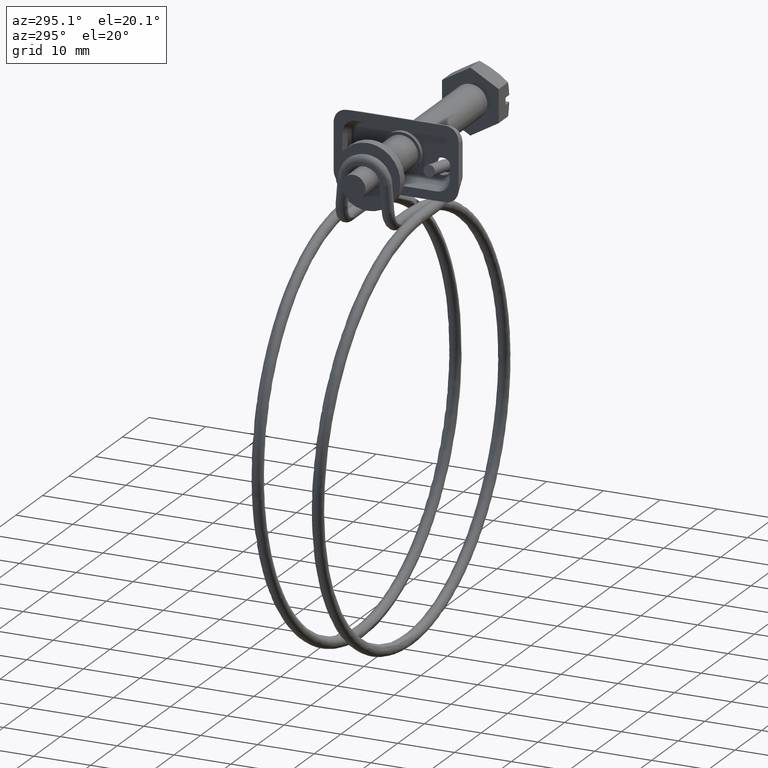
[diagram: clean part render]
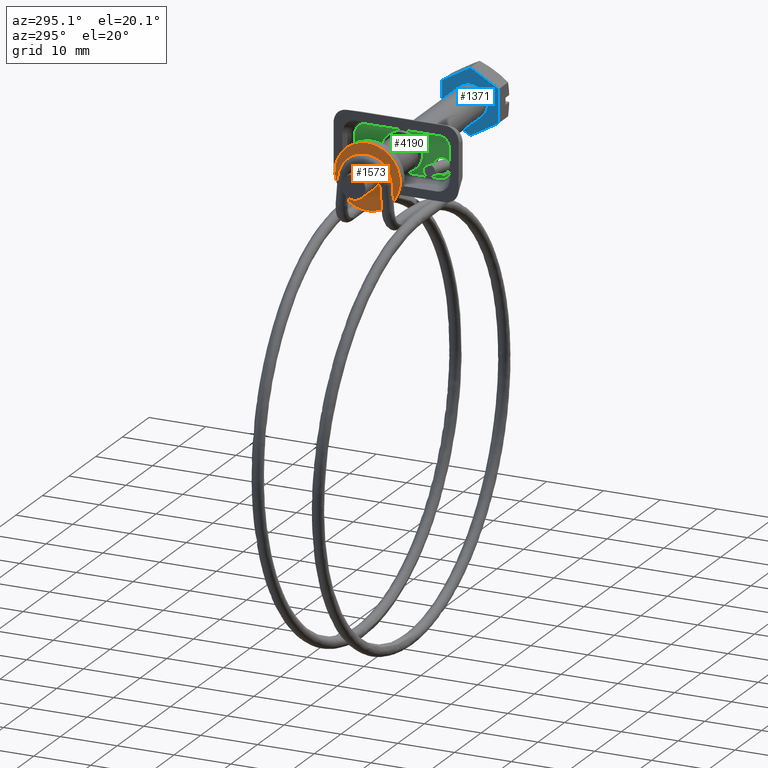
[diagram: same view with three faces highlighted in distinct colors, each labeled with its STEP entity id]
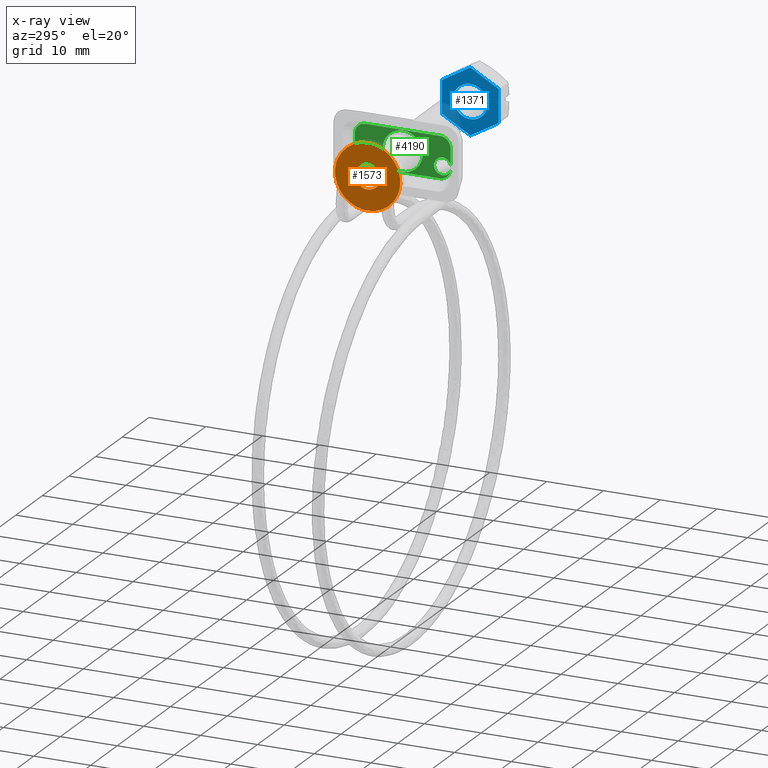
[diagram: x-ray of the same camera — body ghosted, the three highlighted faces saturated]
A machine part, auxiliary view with three faces highlighted in distinct colors.
The next image is the same camera in x-ray (body ghosted, the three faces saturated) — at least one of them is partly hidden behind the body in this view.
Their STEP definitions:

[orange] entity #1573 — the highlighted face is a freeform B-spline surface patch.
#286=CARTESIAN_POINT('',(-38.600000000000001,-5.739275090919949,-0.351029102420015));
#287=VERTEX_POINT('',#286);
#293=CARTESIAN_POINT('',(-38.600000000000001,0.0,-5.750000000000000));
#294=VERTEX_POINT('',#293);
#295=CARTESIAN_POINT('',(-38.600000000000001,0.0,-5.750000000000000));
#296=CARTESIAN_POINT('',(-38.600000000000009,-5.409059884529110,-5.749999999999999));
#297=CARTESIAN_POINT('',(-38.600000000000009,-5.739275090919949,-0.351029102420015));
#305=(BOUNDED_CURVE()B_SPLINE_CURVE(2,(#295,#296,#297),.UNSPECIFIED.,.F.,.U.)B_SPLINE_CURVE_WITH_KNOTS((3,3),(0.500000000000000,0.739332962236281),.UNSPECIFIED.)CURVE()GEOMETRIC_REPRESENTATION_ITEM()RATIONAL_B_SPLINE_CURVE((1.0,0.719603993289829,0.976072041661012))REPRESENTATION_ITEM(''));
#306=EDGE_CURVE('',#294,#287,#305,.T.);
#308=CARTESIAN_POINT('',(-38.599999999999987,5.709804776586705,0.678696849313175));
#309=VERTEX_POINT('',#308);
#310=CARTESIAN_POINT('',(-38.600000000000001,5.709804776586705,0.678696849313175));
#311=CARTESIAN_POINT('',(-38.600000000000001,5.750000000000000,0.340538688035686));
#312=CARTESIAN_POINT('',(-38.600000000000001,5.750000000000000,0.0));
#313=CARTESIAN_POINT('',(-38.600000000000009,5.750000000000000,-5.750000000000000));
#314=CARTESIAN_POINT('',(-38.600000000000001,0.0,-5.750000000000000));
#322=(BOUNDED_CURVE()B_SPLINE_CURVE(2,(#310,#311,#312,#313,#314),.UNSPECIFIED.,.F.,.U.)B_SPLINE_CURVE_WITH_KNOTS((3,2,3),(0.229562473513465,0.250000000000000,0.500000000000000),.UNSPECIFIED.)CURVE()GEOMETRIC_REPRESENTATION_ITEM()RATIONAL_B_SPLINE_CURVE((0.956026754183614,0.976055948331094,1.0,0.707106781186548,1.0))REPRESENTATION_ITEM(''));
#323=EDGE_CURVE('',#309,#294,#322,.T.);
#367=CARTESIAN_POINT('',(-38.600000000000001,0.0,5.750000000000000));
#368=VERTEX_POINT('',#367);
#369=CARTESIAN_POINT('',(-38.600000000000001,0.0,5.750000000000000));
#370=CARTESIAN_POINT('',(-38.600000000000001,5.107003524154044,5.750000000000001));
#371=CARTESIAN_POINT('',(-38.600000000000001,5.709804776586705,0.678696849313175));
#379=(BOUNDED_CURVE()B_SPLINE_CURVE(2,(#369,#370,#371),.UNSPECIFIED.,.F.,.U.)B_SPLINE_CURVE_WITH_KNOTS((3,3),(0.0,0.229562473513465),.UNSPECIFIED.)CURVE()GEOMETRIC_REPRESENTATION_ITEM()RATIONAL_B_SPLINE_CURVE((1.0,0.731050832855453,0.956026754183614))REPRESENTATION_ITEM(''));
#380=EDGE_CURVE('',#368,#309,#379,.T.);
#382=CARTESIAN_POINT('',(-38.599999999999994,-5.739275090919949,-0.351029102420015));
#383=CARTESIAN_POINT('',(-38.600000000000001,-5.750000000000000,-0.175678389061739));
#384=CARTESIAN_POINT('',(-38.600000000000001,-5.750000000000000,0.0));
#385=CARTESIAN_POINT('',(-38.600000000000009,-5.750000000000000,5.750000000000000));
#386=CARTESIAN_POINT('',(-38.600000000000001,0.0,5.750000000000000));
#394=(BOUNDED_CURVE()B_SPLINE_CURVE(2,(#382,#383,#384,#385,#386),.UNSPECIFIED.,.F.,.U.)B_SPLINE_CURVE_WITH_KNOTS((3,2,3),(0.739332962236281,0.750000000000000,1.0),.UNSPECIFIED.)CURVE()GEOMETRIC_REPRESENTATION_ITEM()RATIONAL_B_SPLINE_CURVE((0.976072041661012,0.987502787896719,1.0,0.707106781186548,1.0))REPRESENTATION_ITEM(''));
#395=EDGE_CURVE('',#287,#368,#394,.T.);
#438=CARTESIAN_POINT('',(-38.600000000000001,2.134970473869148,0.253773670238755));
#439=VERTEX_POINT('',#438);
#440=CARTESIAN_POINT('',(-38.600000000000001,0.0,-2.149999999999885));
#441=VERTEX_POINT('',#440);
#442=CARTESIAN_POINT('',(-38.600000000000001,2.134970473869148,0.253773670238755));
#443=CARTESIAN_POINT('',(-38.600000000000001,2.149999999999885,0.127331923673192));
#444=CARTESIAN_POINT('',(-38.600000000000001,2.149999999999885,0.0));
#445=CARTESIAN_POINT('',(-38.600000000000009,2.149999999999885,-2.149999999999885));
#446=CARTESIAN_POINT('',(-38.600000000000001,0.0,-2.149999999999885));
#454=(BOUNDED_CURVE()B_SPLINE_CURVE(2,(#442,#443,#444,#445,#446),.UNSPECIFIED.,.F.,.U.)B_SPLINE_CURVE_WITH_KNOTS((3,2,3),(0.229562463109850,0.250000000000000,0.500000000000000),.UNSPECIFIED.)CURVE()GEOMETRIC_REPRESENTATION_ITEM()RATIONAL_B_SPLINE_CURVE((0.956026733792103,0.976055936142501,1.0,0.707106781186548,1.0))REPRESENTATION_ITEM(''));
#455=EDGE_CURVE('',#439,#441,#454,.T.);
#457=CARTESIAN_POINT('',(-38.600000000000009,-2.145989816582436,-0.131254360399900));
#458=VERTEX_POINT('',#457);
#459=CARTESIAN_POINT('',(-38.600000000000001,0.0,-2.149999999999885));
#460=CARTESIAN_POINT('',(-38.600000000000016,-2.022518043091811,-2.149999999999884));
#461=CARTESIAN_POINT('',(-38.600000000000009,-2.145989816582437,-0.131254360399900));
#469=(BOUNDED_CURVE()B_SPLINE_CURVE(2,(#459,#460,#461),.UNSPECIFIED.,.F.,.U.)B_SPLINE_CURVE_WITH_KNOTS((3,3),(0.500000000000000,0.739332962177650),.UNSPECIFIED.)CURVE()GEOMETRIC_REPRESENTATION_ITEM()RATIONAL_B_SPLINE_CURVE((1.0,0.719603993358520,0.976072041535355))REPRESENTATION_ITEM(''));
#470=EDGE_CURVE('',#441,#458,#469,.T.);
#537=CARTESIAN_POINT('',(-38.600000000000001,0.0,2.149999999999885));
#538=VERTEX_POINT('',#537);
#539=CARTESIAN_POINT('',(-38.600000000000001,0.0,2.149999999999885));
#540=CARTESIAN_POINT('',(-38.599999999999994,1.909575112392111,2.149999999999884));
#541=CARTESIAN_POINT('',(-38.600000000000001,2.134970473869148,0.253773670238755));
#549=(BOUNDED_CURVE()B_SPLINE_CURVE(2,(#539,#540,#541),.UNSPECIFIED.,.F.,.U.)B_SPLINE_CURVE_WITH_KNOTS((3,3),(0.0,0.229562463109850),.UNSPECIFIED.)CURVE()GEOMETRIC_REPRESENTATION_ITEM()RATIONAL_B_SPLINE_CURVE((1.0,0.731050845044047,0.956026733792104))REPRESENTATION_ITEM(''));
#550=EDGE_CURVE('',#538,#439,#549,.T.);
#584=CARTESIAN_POINT('',(-38.600000000000009,-2.145989816582437,-0.131254360399900));
#585=CARTESIAN_POINT('',(-38.600000000000001,-2.149999999999885,-0.065688441493049));
#586=CARTESIAN_POINT('',(-38.600000000000001,-2.149999999999885,0.0));
#587=CARTESIAN_POINT('',(-38.600000000000009,-2.149999999999885,2.149999999999885));
#588=CARTESIAN_POINT('',(-38.600000000000001,0.0,2.149999999999885));
#596=(BOUNDED_CURVE()B_SPLINE_CURVE(2,(#584,#585,#586,#587,#588),.UNSPECIFIED.,.F.,.U.)B_SPLINE_CURVE_WITH_KNOTS((3,2,3),(0.739332962177651,0.750000000000000,1.0),.UNSPECIFIED.)CURVE()GEOMETRIC_REPRESENTATION_ITEM()RATIONAL_B_SPLINE_CURVE((0.976072041535357,0.987502787828029,1.0,0.707106781186548,1.0))REPRESENTATION_ITEM(''));
#597=EDGE_CURVE('',#458,#538,#596,.T.);
#1556=CARTESIAN_POINT('',(-38.600000000000001,-6.324285135775347,-6.324424977710769));
#1557=CARTESIAN_POINT('',(-38.600000000000001,-6.324285135775347,6.324425286164805));
#1558=CARTESIAN_POINT('',(-38.600000000000009,6.324320402353544,-6.324424977710769));
#1559=CARTESIAN_POINT('',(-38.600000000000009,6.324320402353544,6.324425286164805));
#1560=B_SPLINE_SURFACE_WITH_KNOTS('',1,1,((#1556,#1558),(#1557,#1559)),.UNSPECIFIED.,.F.,.F.,.U.,(2,2),(2,2),(0.0,12.648850263875570),(0.0,12.648605538128891),.UNSPECIFIED.);
#1561=ORIENTED_EDGE('',*,*,#380,.T.);
#1562=ORIENTED_EDGE('',*,*,#323,.T.);
#1563=ORIENTED_EDGE('',*,*,#306,.T.);
#1564=ORIENTED_EDGE('',*,*,#395,.T.);
#1565=EDGE_LOOP('',(#1561,#1562,#1563,#1564));
#1566=FACE_OUTER_BOUND('',#1565,.T.);
#1567=ORIENTED_EDGE('',*,*,#470,.F.);
#1568=ORIENTED_EDGE('',*,*,#455,.F.);
#1569=ORIENTED_EDGE('',*,*,#550,.F.);
#1570=ORIENTED_EDGE('',*,*,#597,.F.);
#1571=EDGE_LOOP('',(#1567,#1568,#1569,#1570));
#1572=FACE_BOUND('',#1571,.T.);
#1573=ADVANCED_FACE('',(#1566,#1572),#1560,.T.);

[blue] entity #1371 — the highlighted face is a freeform B-spline surface patch.
#66=CARTESIAN_POINT('',(1.362926E-015,2.979028579087759,0.354102703998511));
#67=VERTEX_POINT('',#66);
#68=CARTESIAN_POINT('',(0.0,0.0,-3.000000000000115));
#69=VERTEX_POINT('',#68);
#70=CARTESIAN_POINT('',(1.362926E-015,2.979028579087759,0.354102703998511));
#71=CARTESIAN_POINT('',(0.0,3.000000000000116,0.177672358984258));
#72=CARTESIAN_POINT('',(0.0,3.000000000000115,0.0));
#73=CARTESIAN_POINT('',(0.0,3.000000000000114,-3.000000000000114));
#74=CARTESIAN_POINT('',(0.0,0.0,-3.000000000000115));
#82=(BOUNDED_CURVE()B_SPLINE_CURVE(2,(#70,#71,#72,#73,#74),.UNSPECIFIED.,.F.,.U.)B_SPLINE_CURVE_WITH_KNOTS((3,2,3),(0.729562473512442,0.750000000000000,1.0),.UNSPECIFIED.)CURVE()GEOMETRIC_REPRESENTATION_ITEM()RATIONAL_B_SPLINE_CURVE((0.956026754181609,0.976055948329896,1.0,0.707106781186547,1.0))REPRESENTATION_ITEM(''));
#83=EDGE_CURVE('',#67,#69,#82,.T.);
#85=CARTESIAN_POINT('',(1.387779E-015,-2.994404395263937,-0.183145618633650));
#86=VERTEX_POINT('',#85);
#87=CARTESIAN_POINT('',(0.0,0.0,-3.000000000000115));
#88=CARTESIAN_POINT('',(0.0,-2.822118200662289,-3.000000000000116));
#89=CARTESIAN_POINT('',(1.387779E-015,-2.994404395263937,-0.183145618633650));
#97=(BOUNDED_CURVE()B_SPLINE_CURVE(2,(#87,#88,#89),.UNSPECIFIED.,.F.,.U.)B_SPLINE_CURVE_WITH_KNOTS((3,3),(0.0,0.239332962238618),.UNSPECIFIED.)CURVE()GEOMETRIC_REPRESENTATION_ITEM()RATIONAL_B_SPLINE_CURVE((1.0,0.719603993287091,0.976072041666021))REPRESENTATION_ITEM(''));
#98=EDGE_CURVE('',#69,#86,#97,.T.);
#165=CARTESIAN_POINT('',(0.0,0.0,3.000000000000115));
#166=VERTEX_POINT('',#165);
#167=CARTESIAN_POINT('',(0.0,0.0,3.000000000000115));
#168=CARTESIAN_POINT('',(0.0,2.664523577803351,3.000000000000114));
#169=CARTESIAN_POINT('',(1.362926E-015,2.979028579087759,0.354102703998511));
#177=(BOUNDED_CURVE()B_SPLINE_CURVE(2,(#167,#168,#169),.UNSPECIFIED.,.F.,.U.)B_SPLINE_CURVE_WITH_KNOTS((3,3),(0.500000000000000,0.729562473512441),.UNSPECIFIED.)CURVE()GEOMETRIC_REPRESENTATION_ITEM()RATIONAL_B_SPLINE_CURVE((1.0,0.731050832856653,0.956026754181608))REPRESENTATION_ITEM(''));
#178=EDGE_CURVE('',#166,#67,#177,.T.);
#212=CARTESIAN_POINT('',(1.387779E-015,-2.994404395263938,-0.183145618633650));
#213=CARTESIAN_POINT('',(0.0,-3.000000000000115,-0.091658289924924));
#214=CARTESIAN_POINT('',(0.0,-3.000000000000115,0.0));
#215=CARTESIAN_POINT('',(0.0,-3.000000000000114,3.000000000000114));
#216=CARTESIAN_POINT('',(0.0,0.0,3.000000000000115));
#224=(BOUNDED_CURVE()B_SPLINE_CURVE(2,(#212,#213,#214,#215,#216),.UNSPECIFIED.,.F.,.U.)B_SPLINE_CURVE_WITH_KNOTS((3,2,3),(0.239332962238618,0.250000000000000,0.500000000000000),.UNSPECIFIED.)CURVE()GEOMETRIC_REPRESENTATION_ITEM()RATIONAL_B_SPLINE_CURVE((0.976072041666021,0.987502787899457,1.0,0.707106781186547,1.0))REPRESENTATION_ITEM(''));
#225=EDGE_CURVE('',#86,#166,#224,.T.);
#1316=CARTESIAN_POINT('',(0.0,-5.499499980618175,-6.350276719225450));
#1317=CARTESIAN_POINT('',(0.0,5.499500248838966,-6.350276719225450));
#1318=CARTESIAN_POINT('',(0.0,-5.499499980618175,6.350275409510818));
#1319=CARTESIAN_POINT('',(0.0,5.499500248838966,6.350275409510818));
#1320=B_SPLINE_SURFACE_WITH_KNOTS('',1,1,((#1316,#1318),(#1317,#1319)),.UNSPECIFIED.,.F.,.F.,.U.,(2,2),(2,2),(0.0,10.999000229457140),(0.0,12.700552128736270),.UNSPECIFIED.);
#1321=CARTESIAN_POINT('',(0.0,-5.000000000000110,2.886751000000115));
#1322=VERTEX_POINT('',#1321);
#1323=CARTESIAN_POINT('',(0.0,0.0,5.773503000000120));
#1324=VERTEX_POINT('',#1323);
#1325=CARTESIAN_POINT('',(0.0,-5.000000000000110,2.886751000000115));
#1326=CARTESIAN_POINT('',(0.0,0.0,5.773503000000120));
#1327=QUASI_UNIFORM_CURVE('',1,(#1325,#1326),.UNSPECIFIED.,.F.,.U.);
#1328=EDGE_CURVE('',#1322,#1324,#1327,.T.);
#1329=ORIENTED_EDGE('',*,*,#1328,.T.);
#1330=CARTESIAN_POINT('',(0.0,5.0,2.886752000000115));
#1331=VERTEX_POINT('',#1330);
#1332=CARTESIAN_POINT('',(0.0,0.0,5.773503000000120));
#1333=CARTESIAN_POINT('',(0.0,5.0,2.886752000000115));
#1334=QUASI_UNIFORM_CURVE('',1,(#1332,#1333),.UNSPECIFIED.,.F.,.U.);
#1335=EDGE_CURVE('',#1324,#1331,#1334,.T.);
#1336=ORIENTED_EDGE('',*,*,#1335,.T.);
#1337=CARTESIAN_POINT('',(0.0,5.0,-2.886751999999885));
#1338=VERTEX_POINT('',#1337);
#1339=CARTESIAN_POINT('',(0.0,5.0,2.886752000000115));
#1340=CARTESIAN_POINT('',(0.0,5.0,-2.886751999999885));
#1341=QUASI_UNIFORM_CURVE('',1,(#1339,#1340),.UNSPECIFIED.,.F.,.U.);
#1342=EDGE_CURVE('',#1331,#1338,#1341,.T.);
#1343=ORIENTED_EDGE('',*,*,#1342,.T.);
#1344=CARTESIAN_POINT('',(0.0,0.0,-5.773503999999890));
#1345=VERTEX_POINT('',#1344);
#1346=CARTESIAN_POINT('',(0.0,5.0,-2.886751999999885));
#1347=CARTESIAN_POINT('',(0.0,0.0,-5.773503999999890));
#1348=QUASI_UNIFORM_CURVE('',1,(#1346,#1347),.UNSPECIFIED.,.F.,.U.);
#1349=EDGE_CURVE('',#1338,#1345,#1348,.T.);
#1350=ORIENTED_EDGE('',*,*,#1349,.T.);
#1351=CARTESIAN_POINT('',(0.0,-5.000000000000110,-2.886751999999890));
#1352=VERTEX_POINT('',#1351);
#1353=CARTESIAN_POINT('',(0.0,0.0,-5.773503999999890));
#1354=CARTESIAN_POINT('',(0.0,-5.000000000000110,-2.886751999999890));
#1355=QUASI_UNIFORM_CURVE('',1,(#1353,#1354),.UNSPECIFIED.,.F.,.U.);
#1356=EDGE_CURVE('',#1345,#1352,#1355,.T.);
#1357=ORIENTED_EDGE('',*,*,#1356,.T.);
#1358=CARTESIAN_POINT('',(0.0,-5.000000000000110,-2.886751999999890));
#1359=CARTESIAN_POINT('',(0.0,-5.000000000000110,2.886751000000115));
#1360=QUASI_UNIFORM_CURVE('',1,(#1358,#1359),.UNSPECIFIED.,.F.,.U.);
#1361=EDGE_CURVE('',#1352,#1322,#1360,.T.);
#1362=ORIENTED_EDGE('',*,*,#1361,.T.);
#1363=EDGE_LOOP('',(#1329,#1336,#1343,#1350,#1357,#1362));
#1364=FACE_OUTER_BOUND('',#1363,.T.);
#1365=ORIENTED_EDGE('',*,*,#98,.F.);
#1366=ORIENTED_EDGE('',*,*,#83,.F.);
#1367=ORIENTED_EDGE('',*,*,#178,.F.);
#1368=ORIENTED_EDGE('',*,*,#225,.F.);
#1369=EDGE_LOOP('',(#1365,#1366,#1367,#1368));
#1370=FACE_BOUND('',#1369,.T.);
#1371=ADVANCED_FACE('',(#1364,#1370),#1320,.F.);

[green] entity #4190 — the highlighted face is a freeform B-spline surface patch.
#1883=CARTESIAN_POINT('',(-36.200000000000003,-5.728324125056300,-0.704487291687884));
#1884=VERTEX_POINT('',#1883);
#1885=CARTESIAN_POINT('',(-36.200000000000003,-8.438446995591788,-1.074711579191980));
#1886=VERTEX_POINT('',#1885);
#1887=CARTESIAN_POINT('',(-36.200000000000010,-5.728324125056301,-0.704487291687884));
#1888=CARTESIAN_POINT('',(-36.199999999999996,-6.104555623827720,-0.103058156268946));
#1889=CARTESIAN_POINT('',(-36.200000000000003,-6.808142015089159,-0.012320426427032));
#1890=CARTESIAN_POINT('',(-36.200000000000010,-8.075999828347010,0.151188335490741));
#1891=CARTESIAN_POINT('',(-36.200000000000003,-8.438446995591784,-1.074711579191981));
#1899=(BOUNDED_CURVE()B_SPLINE_CURVE(2,(#1887,#1888,#1889,#1890,#1891),.UNSPECIFIED.,.F.,.U.)B_SPLINE_CURVE_WITH_KNOTS((3,2,3),(0.594758611923311,0.750000000000000,1.0),.UNSPECIFIED.)CURVE()GEOMETRIC_REPRESENTATION_ITEM()RATIONAL_B_SPLINE_CURVE((0.887540518945366,0.851650052206272,1.0,0.761097942965372,1.0))REPRESENTATION_ITEM(''));
#1900=EDGE_CURVE('',#1884,#1886,#1899,.T.);
#1956=CARTESIAN_POINT('',(-36.200000000000003,-5.502797802380662,-1.591572809520479));
#1957=VERTEX_POINT('',#1956);
#1963=CARTESIAN_POINT('',(-36.200000000000003,-8.409378136258292,-2.013471780176190));
#1964=VERTEX_POINT('',#1963);
#1965=CARTESIAN_POINT('',(-36.200000000000003,-8.409378136258290,-2.013471780176189));
#1966=CARTESIAN_POINT('',(-36.200000000000010,-7.971777714804319,-3.214598093686211));
#1967=CARTESIAN_POINT('',(-36.200000000000003,-6.716465370576391,-2.972958965456003));
#1968=CARTESIAN_POINT('',(-36.199999999999996,-5.573834358550625,-2.753010230860772));
#1969=CARTESIAN_POINT('',(-36.199999999999996,-5.502797802380662,-1.591572809520480));
#1977=(BOUNDED_CURVE()B_SPLINE_CURVE(2,(#1965,#1966,#1967,#1968,#1969),.UNSPECIFIED.,.F.,.U.)B_SPLINE_CURVE_WITH_KNOTS((3,2,3),(0.0,0.250000000000000,0.482545984446108),.UNSPECIFIED.)CURVE()GEOMETRIC_REPRESENTATION_ITEM()RATIONAL_B_SPLINE_CURVE((1.0,0.761097942965372,1.0,0.777777143842729,0.968970550497605))REPRESENTATION_ITEM(''));
#1978=EDGE_CURVE('',#1964,#1957,#1977,.T.);
#2025=CARTESIAN_POINT('',(-36.199999999999996,-5.502797802380662,-1.591572809520480));
#2026=CARTESIAN_POINT('',(-36.200000000000003,-5.498580561938994,-1.522621538121206));
#2027=CARTESIAN_POINT('',(-36.200000000000003,-5.500718614089884,-1.453574512785301));
#2028=CARTESIAN_POINT('',(-36.200000000000003,-5.513269056385548,-1.048266014204392));
#2029=CARTESIAN_POINT('',(-36.200000000000003,-5.728324125056300,-0.704487291687884));
#2037=(BOUNDED_CURVE()B_SPLINE_CURVE(2,(#2025,#2026,#2027,#2028,#2029),.UNSPECIFIED.,.F.,.U.)B_SPLINE_CURVE_WITH_KNOTS((3,2,3),(0.482545984446108,0.500000000000000,0.594758611923311),.UNSPECIFIED.)CURVE()GEOMETRIC_REPRESENTATION_ITEM()RATIONAL_B_SPLINE_CURVE((0.968970550497605,0.983320799122643,1.0,0.909447890759099,0.887540518945365))REPRESENTATION_ITEM(''));
#2038=EDGE_CURVE('',#1957,#1884,#2037,.T.);
#2086=CARTESIAN_POINT('',(-36.200000000000003,5.910109958172995,-2.530601618825850));
#2087=VERTEX_POINT('',#2086);
#2088=CARTESIAN_POINT('',(-36.200000000000003,8.409378136258361,-2.013471780175256));
#2089=VERTEX_POINT('',#2088);
#2090=CARTESIAN_POINT('',(-36.200000000000003,5.910109958172995,-2.530601618825851));
#2091=CARTESIAN_POINT('',(-36.199999999999996,6.242049675785042,-2.881637155840280));
#2092=CARTESIAN_POINT('',(-36.200000000000003,6.716465370576574,-2.972958965456092));
#2093=CARTESIAN_POINT('',(-36.200000000000010,7.971777714805023,-3.214598093685992));
#2094=CARTESIAN_POINT('',(-36.200000000000003,8.409378136258351,-2.013471780175252));
#2102=(BOUNDED_CURVE()B_SPLINE_CURVE(2,(#2090,#2091,#2092,#2093,#2094),.UNSPECIFIED.,.F.,.U.)B_SPLINE_CURVE_WITH_KNOTS((3,2,3),(0.639026038671961,0.750000000000000,1.0),.UNSPECIFIED.)CURVE()GEOMETRIC_REPRESENTATION_ITEM()RATIONAL_B_SPLINE_CURVE((0.882052944107961,0.893952369445751,1.0,0.761097942965258,1.0))REPRESENTATION_ITEM(''));
#2103=EDGE_CURVE('',#2087,#2089,#2102,.T.);
#2159=CARTESIAN_POINT('',(-36.200000000000003,5.502797802369367,-1.408427190659403));
#2160=VERTEX_POINT('',#2159);
#2166=CARTESIAN_POINT('',(-36.200000000000003,8.438446995591820,-1.074711579193044));
#2167=VERTEX_POINT('',#2166);
#2168=CARTESIAN_POINT('',(-36.200000000000003,8.438446995591820,-1.074711579193044));
#2169=CARTESIAN_POINT('',(-36.200000000000010,8.075999828347822,0.151188335490383));
#2170=CARTESIAN_POINT('',(-36.200000000000003,6.808142015089454,-0.012320426426957));
#2171=CARTESIAN_POINT('',(-36.200000000000010,5.578488070789318,-0.170902242082273));
#2172=CARTESIAN_POINT('',(-36.200000000000010,5.502797802369368,-1.408427190659403));
#2180=(BOUNDED_CURVE()B_SPLINE_CURVE(2,(#2168,#2169,#2170,#2171,#2172),.UNSPECIFIED.,.F.,.U.)B_SPLINE_CURVE_WITH_KNOTS((3,2,3),(0.0,0.250000000000000,0.494224959503713),.UNSPECIFIED.)CURVE()GEOMETRIC_REPRESENTATION_ITEM()RATIONAL_B_SPLINE_CURVE((1.0,0.761097942965258,1.0,0.766616619181346,0.989217612196895))REPRESENTATION_ITEM(''));
#2181=EDGE_CURVE('',#2167,#2160,#2180,.T.);
#2228=CARTESIAN_POINT('',(-36.200000000000003,5.502797802369367,-1.408427190659403));
#2229=CARTESIAN_POINT('',(-36.200000000000010,5.501418096122284,-1.430985188379767));
#2230=CARTESIAN_POINT('',(-36.200000000000003,5.500718614089606,-1.453574512785245));
#2231=CARTESIAN_POINT('',(-36.200000000000010,5.481406834419235,-2.077236072969269));
#2232=CARTESIAN_POINT('',(-36.199999999999996,5.910109958172995,-2.530601618825850));
#2240=(BOUNDED_CURVE()B_SPLINE_CURVE(2,(#2228,#2229,#2230,#2231,#2232),.UNSPECIFIED.,.F.,.U.)B_SPLINE_CURVE_WITH_KNOTS((3,2,3),(0.494224959503712,0.500000000000000,0.639026038671961),.UNSPECIFIED.)CURVE()GEOMETRIC_REPRESENTATION_ITEM()RATIONAL_B_SPLINE_CURVE((0.989217612196894,0.994481323783912,1.0,0.867145573519508,0.882052944107961))REPRESENTATION_ITEM(''));
#2241=EDGE_CURVE('',#2160,#2087,#2240,.T.);
#2319=CARTESIAN_POINT('',(-36.200000000000003,-3.493471794463370,0.213669888587232));
#2320=VERTEX_POINT('',#2319);
#2326=CARTESIAN_POINT('',(-36.200000000000003,0.0,3.500000000000000));
#2327=VERTEX_POINT('',#2326);
#2328=CARTESIAN_POINT('',(-36.200000000000003,0.0,3.500000000000000));
#2329=CARTESIAN_POINT('',(-36.200000000000010,-3.292471233763461,3.499999999999999));
#2330=CARTESIAN_POINT('',(-36.199999999999996,-3.493471794463369,0.213669888587232));
#2338=(BOUNDED_CURVE()B_SPLINE_CURVE(2,(#2328,#2329,#2330),.UNSPECIFIED.,.F.,.U.)B_SPLINE_CURVE_WITH_KNOTS((3,3),(0.500000000000000,0.739332962220706),.UNSPECIFIED.)CURVE()GEOMETRIC_REPRESENTATION_ITEM()RATIONAL_B_SPLINE_CURVE((1.0,0.719603993308076,0.976072041627633))REPRESENTATION_ITEM(''));
#2339=EDGE_CURVE('',#2327,#2320,#2338,.T.);
#2341=CARTESIAN_POINT('',(-36.200000000000003,3.475533342248648,-0.413119821502116));
#2342=VERTEX_POINT('',#2341);
#2343=CARTESIAN_POINT('',(-36.200000000000003,3.475533342248648,-0.413119821502116));
#2344=CARTESIAN_POINT('',(-36.200000000000003,3.500000000000000,-0.207284418987298));
#2345=CARTESIAN_POINT('',(-36.200000000000003,3.500000000000000,0.0));
#2346=CARTESIAN_POINT('',(-36.200000000000003,3.500000000000000,3.500000000000000));
#2347=CARTESIAN_POINT('',(-36.200000000000003,0.0,3.500000000000000));
#2355=(BOUNDED_CURVE()B_SPLINE_CURVE(2,(#2343,#2344,#2345,#2346,#2347),.UNSPECIFIED.,.F.,.U.)B_SPLINE_CURVE_WITH_KNOTS((3,2,3),(0.229562473495857,0.250000000000000,0.500000000000000),.UNSPECIFIED.)CURVE()GEOMETRIC_REPRESENTATION_ITEM()RATIONAL_B_SPLINE_CURVE((0.956026754149102,0.976055948310465,1.0,0.707106781186547,1.0))REPRESENTATION_ITEM(''));
#2356=EDGE_CURVE('',#2342,#2327,#2355,.T.);
#2400=CARTESIAN_POINT('',(-36.200000000000003,0.0,-3.500000000000000));
#2401=VERTEX_POINT('',#2400);
#2402=CARTESIAN_POINT('',(-36.200000000000003,0.0,-3.500000000000000));
#2403=CARTESIAN_POINT('',(-36.200000000000003,3.108610840463261,-3.500000000000000));
#2404=CARTESIAN_POINT('',(-36.200000000000003,3.475533342248648,-0.413119821502116));
#2412=(BOUNDED_CURVE()B_SPLINE_CURVE(2,(#2402,#2403,#2404),.UNSPECIFIED.,.F.,.U.)B_SPLINE_CURVE_WITH_KNOTS((3,3),(0.0,0.229562473495857),.UNSPECIFIED.)CURVE()GEOMETRIC_REPRESENTATION_ITEM()RATIONAL_B_SPLINE_CURVE((1.0,0.731050832876082,0.956026754149102))REPRESENTATION_ITEM(''));
#2413=EDGE_CURVE('',#2401,#2342,#2412,.T.);
#2415=CARTESIAN_POINT('',(-36.199999999999989,-3.493471794463370,0.213669888587232));
#2416=CARTESIAN_POINT('',(-36.199999999999989,-3.500000000000000,0.106934671760897));
#2417=CARTESIAN_POINT('',(-36.200000000000003,-3.500000000000000,0.0));
#2418=CARTESIAN_POINT('',(-36.200000000000003,-3.500000000000000,-3.500000000000000));
#2419=CARTESIAN_POINT('',(-36.200000000000003,0.0,-3.500000000000000));
#2427=(BOUNDED_CURVE()B_SPLINE_CURVE(2,(#2415,#2416,#2417,#2418,#2419),.UNSPECIFIED.,.F.,.U.)B_SPLINE_CURVE_WITH_KNOTS((3,2,3),(0.739332962220707,0.750000000000000,1.0),.UNSPECIFIED.)CURVE()GEOMETRIC_REPRESENTATION_ITEM()RATIONAL_B_SPLINE_CURVE((0.976072041627635,0.987502787878473,1.0,0.707106781186547,1.0))REPRESENTATION_ITEM(''));
#2428=EDGE_CURVE('',#2320,#2401,#2427,.T.);
#2487=CARTESIAN_POINT('',(-36.200000000000003,-6.552455856614260,-3.613999483098555));
#2488=VERTEX_POINT('',#2487);
#2532=CARTESIAN_POINT('',(-36.200000000000003,-6.552455856614260,-3.613999483098555));
#2533=CARTESIAN_POINT('',(-36.199999999999996,-8.142356781997027,-3.613999483098620));
#2534=CARTESIAN_POINT('',(-36.200000000000003,-8.409378136258329,-2.013471780176166));
#2542=(BOUNDED_CURVE()B_SPLINE_CURVE(2,(#2532,#2533,#2534),.UNSPECIFIED.,.F.,.U.)CURVE()GEOMETRIC_REPRESENTATION_ITEM()QUASI_UNIFORM_CURVE()RATIONAL_B_SPLINE_CURVE((1.0,0.790787445489052,1.0))REPRESENTATION_ITEM(''));
#2543=EDGE_CURVE('',#2488,#1964,#2542,.T.);
#2637=CARTESIAN_POINT('',(-36.200000000000003,6.552455856614290,-3.613999483098555));
#2638=VERTEX_POINT('',#2637);
#2660=CARTESIAN_POINT('',(-36.200000000000003,6.552455856614290,-3.613999483098555));
#2661=CARTESIAN_POINT('',(-36.200000000000003,-6.552455856614260,-3.613999483098555));
#2662=QUASI_UNIFORM_CURVE('',1,(#2660,#2661),.UNSPECIFIED.,.F.,.U.);
#2663=EDGE_CURVE('',#2638,#2488,#2662,.T.);
#2784=CARTESIAN_POINT('',(-36.200000000000003,8.409378136258361,-2.013471780175256));
#2785=CARTESIAN_POINT('',(-36.199999999999996,8.142356781997565,-3.613999483098475));
#2786=CARTESIAN_POINT('',(-36.200000000000003,6.552455856614280,-3.613999483098562));
#2794=(BOUNDED_CURVE()B_SPLINE_CURVE(2,(#2784,#2785,#2786),.UNSPECIFIED.,.F.,.U.)CURVE()GEOMETRIC_REPRESENTATION_ITEM()QUASI_UNIFORM_CURVE()RATIONAL_B_SPLINE_CURVE((1.0,0.790787445488940,1.0))REPRESENTATION_ITEM(''));
#2795=EDGE_CURVE('',#2089,#2638,#2794,.T.);
#2816=CARTESIAN_POINT('',(-36.200000000000003,-8.438446995591788,1.659899352054025));
#2817=VERTEX_POINT('',#2816);
#2831=CARTESIAN_POINT('',(-36.200000000000003,-8.438446995591788,-1.074711579191980));
#2832=CARTESIAN_POINT('',(-36.200000000000003,-8.438446995591788,1.659899352054025));
#2833=QUASI_UNIFORM_CURVE('',1,(#2831,#2832),.UNSPECIFIED.,.F.,.U.);
#2834=EDGE_CURVE('',#1886,#2817,#2833,.T.);
#2960=CARTESIAN_POINT('',(-36.200000000000003,-6.552455856614260,3.613998483098680));
#2961=VERTEX_POINT('',#2960);
#2975=CARTESIAN_POINT('',(-36.200000000000003,-8.438446995591779,1.659899352054033));
#2976=CARTESIAN_POINT('',(-36.199999999999996,-8.438446995591772,3.613998483098672));
#2977=CARTESIAN_POINT('',(-36.200000000000003,-6.552455856614251,3.613998483098665));
#2985=(BOUNDED_CURVE()B_SPLINE_CURVE(2,(#2975,#2976,#2977),.UNSPECIFIED.,.F.,.U.)CURVE()GEOMETRIC_REPRESENTATION_ITEM()QUASI_UNIFORM_CURVE()RATIONAL_B_SPLINE_CURVE((1.0,0.736600277350791,1.0))REPRESENTATION_ITEM(''));
#2986=EDGE_CURVE('',#2817,#2961,#2985,.T.);
#3070=CARTESIAN_POINT('',(-36.200000000000003,6.552455856614140,3.613998483098650));
#3071=VERTEX_POINT('',#3070);
#3085=CARTESIAN_POINT('',(-36.200000000000003,-6.552455856614260,3.613998483098680));
#3086=CARTESIAN_POINT('',(-36.200000000000003,6.552455856614140,3.613998483098650));
#3087=QUASI_UNIFORM_CURVE('',1,(#3085,#3086),.UNSPECIFIED.,.F.,.U.);
#3088=EDGE_CURVE('',#2961,#3071,#3087,.T.);
#3113=CARTESIAN_POINT('',(-36.200000000000003,8.438446995591759,1.659899352054280));
#3114=VERTEX_POINT('',#3113);
#3136=CARTESIAN_POINT('',(-36.200000000000003,8.438446995591759,1.659899352054280));
#3137=CARTESIAN_POINT('',(-36.200000000000003,8.438446995591820,-1.074711579193044));
#3138=QUASI_UNIFORM_CURVE('',1,(#3136,#3137),.UNSPECIFIED.,.F.,.U.);
#3139=EDGE_CURVE('',#3114,#2167,#3138,.T.);
#3197=CARTESIAN_POINT('',(-36.200000000000003,6.552455856614149,3.613998483098665));
#3198=CARTESIAN_POINT('',(-36.200000000000010,8.438446995591537,3.613998483098739));
#3199=CARTESIAN_POINT('',(-36.200000000000003,8.438446995591747,1.659899352054262));
#3207=(BOUNDED_CURVE()B_SPLINE_CURVE(2,(#3197,#3198,#3199),.UNSPECIFIED.,.F.,.U.)CURVE()GEOMETRIC_REPRESENTATION_ITEM()QUASI_UNIFORM_CURVE()RATIONAL_B_SPLINE_CURVE((1.0,0.736600277350815,1.0))REPRESENTATION_ITEM(''));
#3208=EDGE_CURVE('',#3071,#3114,#3207,.T.);
#4163=CARTESIAN_POINT('',(-36.200000000000003,-9.281447817740716,3.975036873826210));
#4164=CARTESIAN_POINT('',(-36.200000000000003,-9.281447817740716,-3.975037615332734));
#4165=CARTESIAN_POINT('',(-36.200000000000003,9.281448270414316,3.975036873826210));
#4166=CARTESIAN_POINT('',(-36.200000000000003,9.281448270414316,-3.975037615332734));
#4167=B_SPLINE_SURFACE_WITH_KNOTS('',1,1,((#4163,#4165),(#4164,#4166)),.UNSPECIFIED.,.F.,.F.,.U.,(2,2),(2,2),(0.0,7.950074489158943),(0.0,18.562896088155028),.UNSPECIFIED.);
#4168=ORIENTED_EDGE('',*,*,#2663,.T.);
#4169=ORIENTED_EDGE('',*,*,#2543,.T.);
#4170=ORIENTED_EDGE('',*,*,#1978,.T.);
#4171=ORIENTED_EDGE('',*,*,#2038,.T.);
#4172=ORIENTED_EDGE('',*,*,#1900,.T.);
#4173=ORIENTED_EDGE('',*,*,#2834,.T.);
#4174=ORIENTED_EDGE('',*,*,#2986,.T.);
#4175=ORIENTED_EDGE('',*,*,#3088,.T.);
#4176=ORIENTED_EDGE('',*,*,#3208,.T.);
#4177=ORIENTED_EDGE('',*,*,#3139,.T.);
#4178=ORIENTED_EDGE('',*,*,#2181,.T.);
#4179=ORIENTED_EDGE('',*,*,#2241,.T.);
#4180=ORIENTED_EDGE('',*,*,#2103,.T.);
#4181=ORIENTED_EDGE('',*,*,#2795,.T.);
#4182=EDGE_LOOP('',(#4168,#4169,#4170,#4171,#4172,#4173,#4174,#4175,#4176,#4177,#4178,#4179,#4180,#4181));
#4183=FACE_OUTER_BOUND('',#4182,.T.);
#4184=ORIENTED_EDGE('',*,*,#2339,.T.);
#4185=ORIENTED_EDGE('',*,*,#2428,.T.);
#4186=ORIENTED_EDGE('',*,*,#2413,.T.);
#4187=ORIENTED_EDGE('',*,*,#2356,.T.);
#4188=EDGE_LOOP('',(#4184,#4185,#4186,#4187));
#4189=FACE_BOUND('',#4188,.T.);
#4190=ADVANCED_FACE('',(#4183,#4189),#4167,.F.);